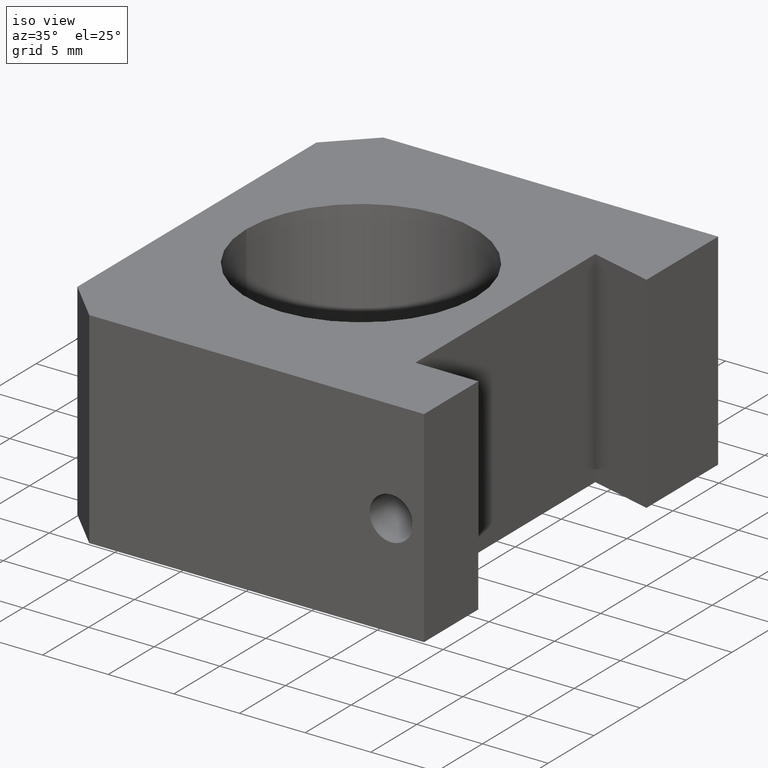
[diagram: clean part render]
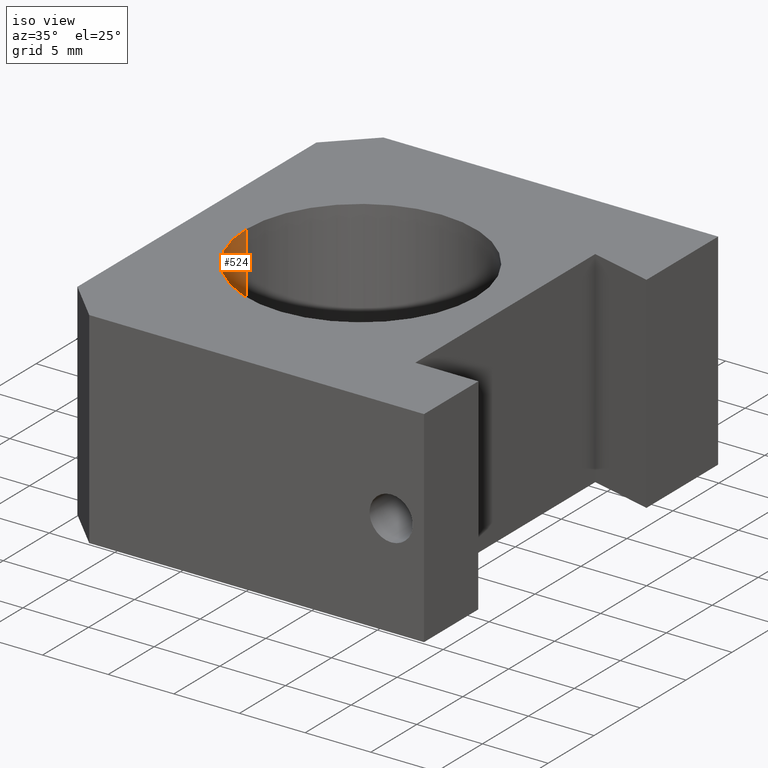
[diagram: same view with one face highlighted and labeled with its STEP entity id]
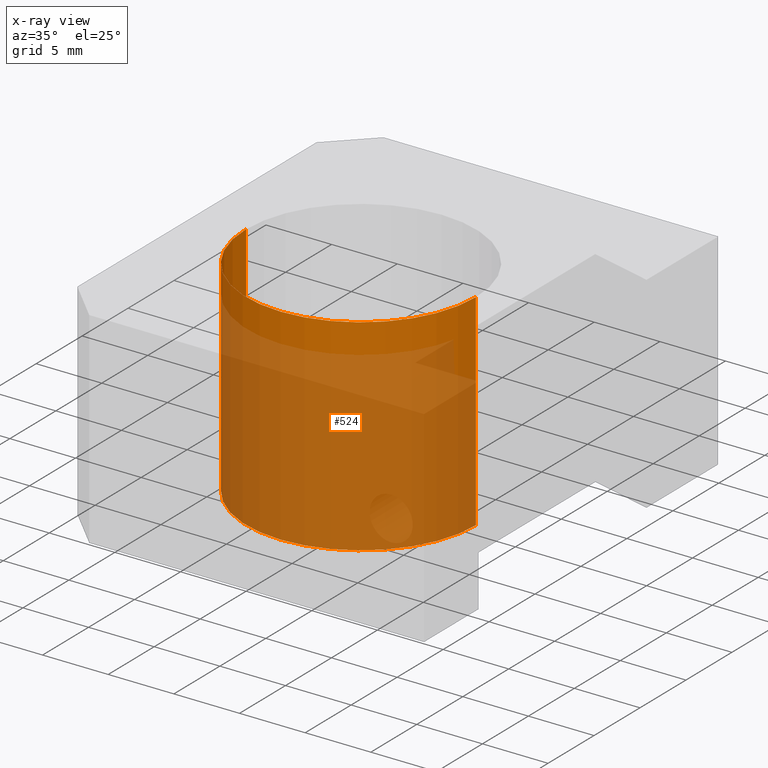
[diagram: x-ray of the same camera — body ghosted, the highlighted face saturated]
A machine part, iso view. The second image highlights one B-rep face of the part: STEP entity #524.
The next image is the same camera in x-ray: the body ghosted, the highlighted face saturated — about 83% of this face is hidden behind the body in this view.
In plain terms, the highlighted cylindrical surface (partial cylindrical patch) has radius 8.75 mm, axis along (-0, -0, 1).
Its self-contained STEP definition (entity closure, byte-faithful):
#1 = EDGE_CURVE ( 'NONE', #502, #402, #55, .T. ) ;
#3 = LINE ( 'NONE', #6, #301 ) ;
#5 = ORIENTED_EDGE ( 'NONE', *, *, #35, .F. ) ;
#6 = CARTESIAN_POINT ( 'NONE',  ( -10.49999999999999300, 1.071565949253933100E-015, 15.69999999999999900 ) ) ;
#14 = CYLINDRICAL_SURFACE ( 'NONE', #68, 8.749999999999994700 ) ;
#26 = DIRECTION ( 'NONE',  ( -0.0000000000000000000, 0.0000000000000000000, 1.000000000000000000 ) ) ;
#35 = EDGE_CURVE ( 'NONE', #402, #293, #145, .T. ) ;
#51 = ORIENTED_EDGE ( 'NONE', *, *, #89, .T. ) ;
#54 = CARTESIAN_POINT ( 'NONE',  ( -10.49999999999999300, 1.071565949253933100E-015, 0.0000000000000000000 ) ) ;
#55 = CIRCLE ( 'NONE', #399, 8.749999999999994700 ) ;
#68 = AXIS2_PLACEMENT_3D ( 'NONE', #183, #368, #323 ) ;
#89 = EDGE_CURVE ( 'NONE', #350, #293, #125, .T. ) ;
#103 = CARTESIAN_POINT ( 'NONE',  ( -10.49999999999999600, 1.071565949253933500E-015, 15.69999999999999900 ) ) ;
#113 = DIRECTION ( 'NONE',  ( 1.000000000000000000, 0.0000000000000000000, 0.0000000000000000000 ) ) ;
#117 = ORIENTED_EDGE ( 'NONE', *, *, #1, .F. ) ;
#119 = DIRECTION ( 'NONE',  ( 1.000000000000000000, 0.0000000000000000000, 0.0000000000000000000 ) ) ;
#125 = CIRCLE ( 'NONE', #433, 8.749999999999998200 ) ;
#140 = CARTESIAN_POINT ( 'NONE',  ( 6.999999999999993800, 0.0000000000000000000, 0.0000000000000000000 ) ) ;
#145 = LINE ( 'NONE', #373, #258 ) ;
#178 = ORIENTED_EDGE ( 'NONE', *, *, #436, .T. ) ;
#183 = CARTESIAN_POINT ( 'NONE',  ( -1.749999999999999800, 0.0000000000000000000, 15.69999999999999900 ) ) ;
#205 = CARTESIAN_POINT ( 'NONE',  ( -1.749999999999999800, 0.0000000000000000000, 15.69999999999999900 ) ) ;
#225 = EDGE_LOOP ( 'NONE', ( #117, #178, #51, #5 ) ) ;
#257 = FACE_OUTER_BOUND ( 'NONE', #225, .T. ) ;
#258 = VECTOR ( 'NONE', #282, 1000.000000000000000 ) ;
#282 = DIRECTION ( 'NONE',  ( -0.0000000000000000000, -0.0000000000000000000, 1.000000000000000000 ) ) ;
#284 = CARTESIAN_POINT ( 'NONE',  ( -1.749999999999999800, 0.0000000000000000000, 0.0000000000000000000 ) ) ;
#293 = VERTEX_POINT ( 'NONE', #461 ) ;
#301 = VECTOR ( 'NONE', #310, 1000.000000000000000 ) ;
#310 = DIRECTION ( 'NONE',  ( -0.0000000000000000000, -0.0000000000000000000, 1.000000000000000000 ) ) ;
#323 = DIRECTION ( 'NONE',  ( 1.000000000000000000, 0.0000000000000000000, 0.0000000000000000000 ) ) ;
#350 = VERTEX_POINT ( 'NONE', #103 ) ;
#368 = DIRECTION ( 'NONE',  ( -0.0000000000000000000, -0.0000000000000000000, 1.000000000000000000 ) ) ;
#373 = CARTESIAN_POINT ( 'NONE',  ( 6.999999999999993800, 0.0000000000000000000, 15.69999999999999900 ) ) ;
#384 = DIRECTION ( 'NONE',  ( -0.0000000000000000000, -0.0000000000000000000, 1.000000000000000000 ) ) ;
#399 = AXIS2_PLACEMENT_3D ( 'NONE', #284, #26, #113 ) ;
#402 = VERTEX_POINT ( 'NONE', #140 ) ;
#433 = AXIS2_PLACEMENT_3D ( 'NONE', #205, #384, #119 ) ;
#436 = EDGE_CURVE ( 'NONE', #502, #350, #3, .T. ) ;
#461 = CARTESIAN_POINT ( 'NONE',  ( 6.999999999999997300, 0.0000000000000000000, 15.69999999999999900 ) ) ;
#502 = VERTEX_POINT ( 'NONE', #54 ) ;
#524 = ADVANCED_FACE ( 'NONE', ( #257 ), #14, .F. ) ;